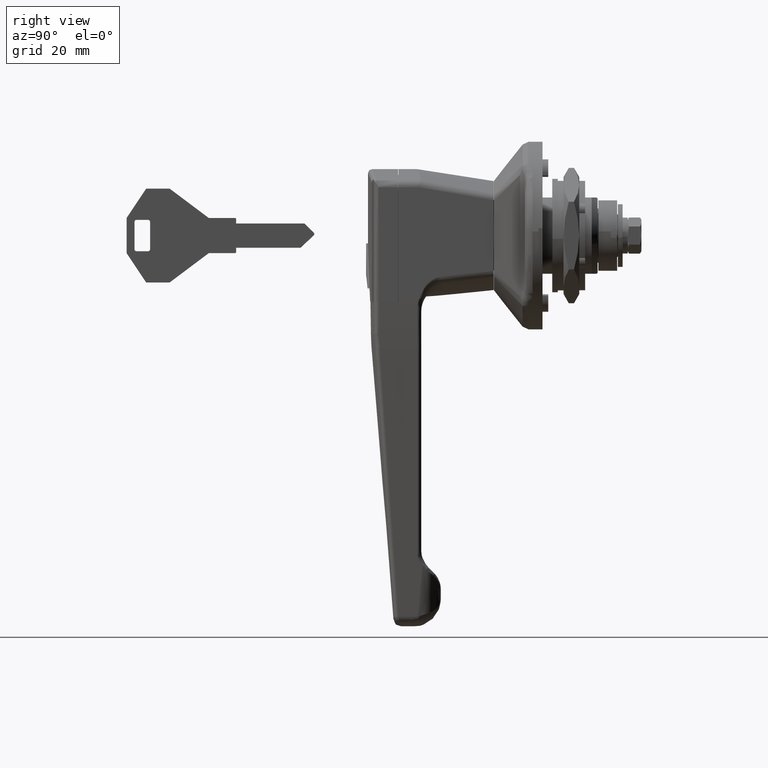
[diagram: clean part render]
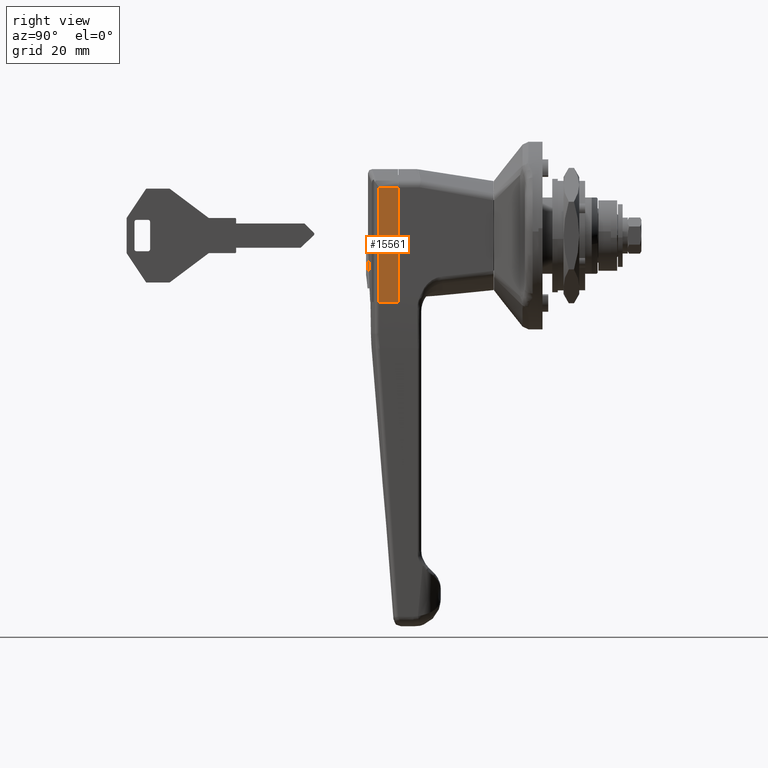
[diagram: same view with one face highlighted and labeled with its STEP entity id]
A machine part, right view. The second image highlights one B-rep face of the part: STEP entity #15561.
In plain terms, the highlighted face is a freeform B-spline surface patch.
Its self-contained STEP definition (entity closure, byte-faithful):
#14395=CARTESIAN_POINT('',(-41.868385151134099,-12.500000000000000,-17.0));
#14396=VERTEX_POINT('',#14395);
#14410=CARTESIAN_POINT('',(-41.868385151134099,-12.500000000000000,12.332615000000100));
#14411=VERTEX_POINT('',#14410);
#14412=CARTESIAN_POINT('',(-41.868385151134099,-12.500000000000000,12.332615000000100));
#14413=CARTESIAN_POINT('',(-41.868385151134099,-12.500000000000000,-17.0));
#14414=QUASI_UNIFORM_CURVE('',1,(#14412,#14413),.UNSPECIFIED.,.F.,.U.);
#14415=EDGE_CURVE('',#14411,#14396,#14414,.T.);
#15326=CARTESIAN_POINT('',(-36.799999999999997,-12.500000000000000,12.332615000000100));
#15327=VERTEX_POINT('',#15326);
#15341=CARTESIAN_POINT('',(-36.799999999999997,-12.500000000000000,-17.0));
#15342=VERTEX_POINT('',#15341);
#15343=CARTESIAN_POINT('',(-36.799999999999997,-12.500000000000000,-17.0));
#15344=CARTESIAN_POINT('',(-36.799999999999997,-12.500000000000000,12.332615000000100));
#15345=QUASI_UNIFORM_CURVE('',1,(#15343,#15344),.UNSPECIFIED.,.F.,.U.);
#15346=EDGE_CURVE('',#15342,#15327,#15345,.T.);
#15362=CARTESIAN_POINT('',(-41.868385151134099,-12.500000000000000,-17.0));
#15363=CARTESIAN_POINT('',(-36.799999999999997,-12.500000000000000,-17.0));
#15364=QUASI_UNIFORM_CURVE('',1,(#15362,#15363),.UNSPECIFIED.,.F.,.U.);
#15365=EDGE_CURVE('',#14396,#15342,#15364,.T.);
#15540=CARTESIAN_POINT('',(-41.868385151134099,-12.500000000000000,12.332615000000100));
#15541=CARTESIAN_POINT('',(-36.799999999999997,-12.500000000000000,12.332615000000100));
#15542=QUASI_UNIFORM_CURVE('',1,(#15540,#15541),.UNSPECIFIED.,.F.,.U.);
#15543=EDGE_CURVE('',#14411,#15327,#15542,.T.);
#15550=CARTESIAN_POINT('',(-42.121551206138903,-12.500000000000000,-18.465164062397701));
#15551=CARTESIAN_POINT('',(-42.121551206138903,-12.500000000000000,13.797779849159850));
#15552=CARTESIAN_POINT('',(-36.546833265271779,-12.500000000000000,-18.465164062397701));
#15553=CARTESIAN_POINT('',(-36.546833265271793,-12.500000000000000,13.797779849159850));
#15554=B_SPLINE_SURFACE_WITH_KNOTS('',1,1,((#15550,#15552),(#15551,#15553)),.UNSPECIFIED.,.F.,.F.,.U.,(2,2),(2,2),(0.0,32.262943911557556),(0.0,5.574717940867117),.UNSPECIFIED.);
#15555=ORIENTED_EDGE('',*,*,#15543,.F.);
#15556=ORIENTED_EDGE('',*,*,#14415,.T.);
#15557=ORIENTED_EDGE('',*,*,#15365,.T.);
#15558=ORIENTED_EDGE('',*,*,#15346,.T.);
#15559=EDGE_LOOP('',(#15555,#15556,#15557,#15558));
#15560=FACE_OUTER_BOUND('',#15559,.T.);
#15561=ADVANCED_FACE('',(#15560),#15554,.F.);